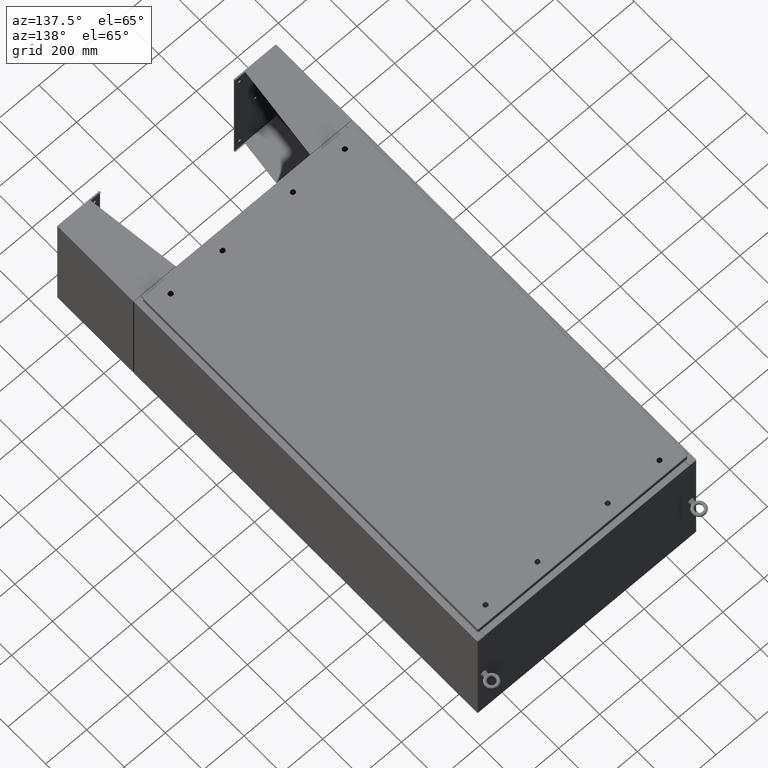
[diagram: clean part render]
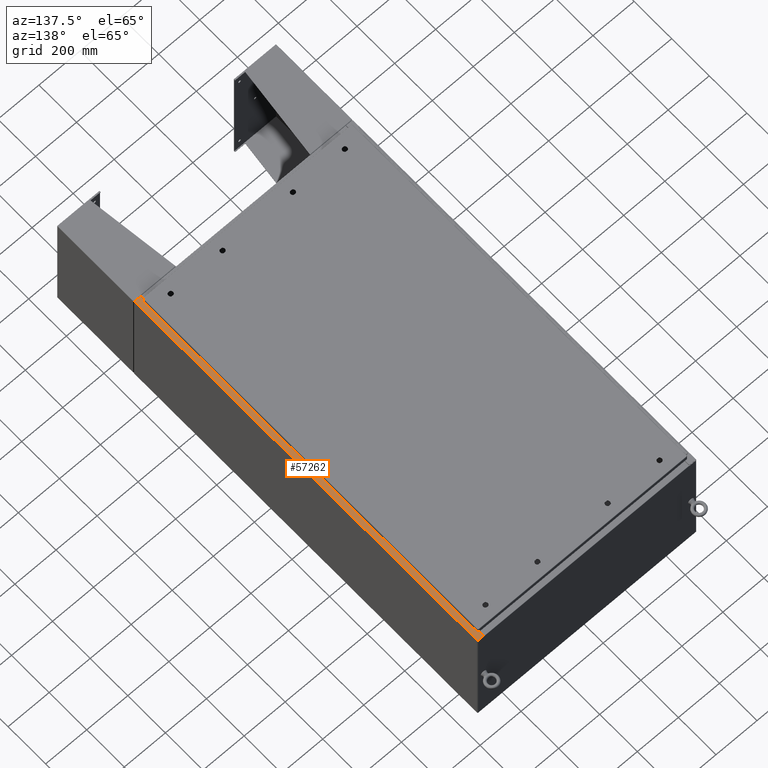
[diagram: same view with one face highlighted and labeled with its STEP entity id]
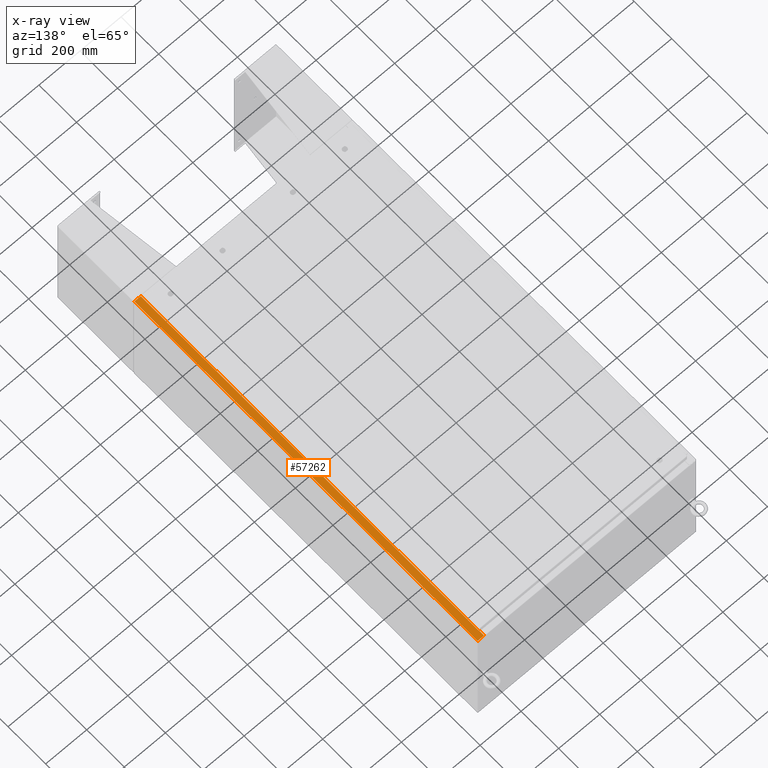
[diagram: x-ray of the same camera — body ghosted, the highlighted face saturated]
A machine part, auxiliary view. The second image highlights one B-rep face of the part: STEP entity #57262.
The next image is the same camera in x-ray: the body ghosted, the highlighted face saturated — about 0% of this face is hidden behind the body in this view.
In plain terms, the highlighted planar face has unit normal (-0, 0, -1).
Its self-contained STEP definition (entity closure, byte-faithful):
#150 = EDGE_CURVE ( 'NONE', #5914, #60733, #559, .T. ) ;
#522 = AXIS2_PLACEMENT_3D ( 'NONE', #43633, #54594, #21768 ) ;
#559 = LINE ( 'NONE', #45982, #13400 ) ;
#932 = LINE ( 'NONE', #20432, #2662 ) ;
#1023 = CARTESIAN_POINT ( 'NONE',  ( 19.69970000000008900, 34.63109999999999600, 23.92530000000000700 ) ) ;
#1180 = LINE ( 'NONE', #5076, #30156 ) ;
#1305 = DIRECTION ( 'NONE',  ( 7.132762385546384700E-015, 0.0000000000000000000, 1.000000000000000000 ) ) ;
#2247 = DIRECTION ( 'NONE',  ( 1.000000000000000000, 0.0000000000000000000, 0.0000000000000000000 ) ) ;
#2271 = CARTESIAN_POINT ( 'NONE',  ( 20.91230000000009100, -35.92530000000000000, 23.92530000000000000 ) ) ;
#2662 = VECTOR ( 'NONE', #18149, 39.37007874015748100 ) ;
#3291 = ORIENTED_EDGE ( 'NONE', *, *, #26801, .T. ) ;
#5076 = CARTESIAN_POINT ( 'NONE',  ( 19.71270000000009400, -34.59375000000000000, 23.92530000000000700 ) ) ;
#5407 = VECTOR ( 'NONE', #28249, 39.37007874015748100 ) ;
#5709 = AXIS2_PLACEMENT_3D ( 'NONE', #68032, #34975, #2247 ) ;
#5914 = VERTEX_POINT ( 'NONE', #59753 ) ;
#6105 = ORIENTED_EDGE ( 'NONE', *, *, #26680, .F. ) ;
#6414 = DIRECTION ( 'NONE',  ( 0.0000000000000000000, -1.000000000000000000, 0.0000000000000000000 ) ) ;
#8413 = EDGE_CURVE ( 'NONE', #5914, #56462, #11319, .T. ) ;
#10299 = DIRECTION ( 'NONE',  ( -0.0000000000000000000, 1.000000000000000000, -0.0000000000000000000 ) ) ;
#11319 = LINE ( 'NONE', #51379, #38724 ) ;
#11837 = CARTESIAN_POINT ( 'NONE',  ( 19.75005000000009000, -34.59374999999999300, 23.92530000000000700 ) ) ;
#13400 = VECTOR ( 'NONE', #19442, 39.37007874015748100 ) ;
#13770 = VECTOR ( 'NONE', #36533, 39.37007874015748100 ) ;
#15082 = VECTOR ( 'NONE', #6414, 39.37007874015748100 ) ;
#15656 = CARTESIAN_POINT ( 'NONE',  ( 19.69970000000008900, 0.0000000000000000000, 23.92530000000000700 ) ) ;
#15696 = CARTESIAN_POINT ( 'NONE',  ( 19.75005000000009000, -34.61242499999999500, 23.92530000000000700 ) ) ;
#16193 = ORIENTED_EDGE ( 'NONE', *, *, #150, .T. ) ;
#16339 = EDGE_CURVE ( 'NONE', #63890, #38116, #47968, .T. ) ;
#16355 = PLANE ( 'NONE',  #522 ) ;
#16514 = FACE_OUTER_BOUND ( 'NONE', #31203, .T. ) ;
#17850 = ORIENTED_EDGE ( 'NONE', *, *, #33090, .F. ) ;
#18149 = DIRECTION ( 'NONE',  ( 1.000000000000000000, 0.0000000000000000000, -7.132762385546384700E-015 ) ) ;
#19146 = EDGE_CURVE ( 'NONE', #60733, #50638, #45872, .T. ) ;
#19442 = DIRECTION ( 'NONE',  ( -1.000000000000000000, 0.0000000000000000000, 7.132762385546384700E-015 ) ) ;
#19930 = EDGE_CURVE ( 'NONE', #40458, #43928, #57785, .T. ) ;
#20272 = ORIENTED_EDGE ( 'NONE', *, *, #34377, .F. ) ;
#20432 = CARTESIAN_POINT ( 'NONE',  ( 1.709142935589255800E-013, -35.92530000000000000, 23.92530000000014900 ) ) ;
#20995 = CARTESIAN_POINT ( 'NONE',  ( 19.75005000000009000, -34.59374999999999300, 23.92530000000000700 ) ) ;
#21751 = VERTEX_POINT ( 'NONE', #36809 ) ;
#21768 = DIRECTION ( 'NONE',  ( -1.000000000000000000, 0.0000000000000000000, 7.132762385546384700E-015 ) ) ;
#22444 = EDGE_CURVE ( 'NONE', #58154, #21751, #57592, .T. ) ;
#23555 = ORIENTED_EDGE ( 'NONE', *, *, #32764, .F. ) ;
#25614 = VERTEX_POINT ( 'NONE', #57796 ) ;
#26094 = CARTESIAN_POINT ( 'NONE',  ( 19.75005000000009000, 34.63109999999999600, 23.92530000000000700 ) ) ;
#26680 = EDGE_CURVE ( 'NONE', #25614, #40458, #64405, .T. ) ;
#26801 = EDGE_CURVE ( 'NONE', #38116, #56462, #932, .T. ) ;
#28249 = DIRECTION ( 'NONE',  ( 0.0000000000000000000, -1.000000000000000000, 0.0000000000000000000 ) ) ;
#28443 = VECTOR ( 'NONE', #34682, 39.37007874015748100 ) ;
#28637 = VECTOR ( 'NONE', #54070, 39.37007874015748100 ) ;
#28900 = ORIENTED_EDGE ( 'NONE', *, *, #16339, .T. ) ;
#30156 = VECTOR ( 'NONE', #10299, 39.37007874015748100 ) ;
#30861 = CIRCLE ( 'NONE', #5709, 0.01867499999999949400 ) ;
#31203 = EDGE_LOOP ( 'NONE', ( #17850, #28900, #3291, #70315, #16193, #39508, #20272, #35532, #48019, #23555, #32489, #6105 ) ) ;
#32489 = ORIENTED_EDGE ( 'NONE', *, *, #19930, .F. ) ;
#32589 = AXIS2_PLACEMENT_3D ( 'NONE', #15696, #1305, #46766 ) ;
#32764 = EDGE_CURVE ( 'NONE', #43928, #58154, #1180, .T. ) ;
#33090 = EDGE_CURVE ( 'NONE', #63890, #25614, #53270, .T. ) ;
#34377 = EDGE_CURVE ( 'NONE', #52993, #50638, #57395, .T. ) ;
#34682 = DIRECTION ( 'NONE',  ( 1.000000000000000000, 0.0000000000000000000, 0.0000000000000000000 ) ) ;
#34975 = DIRECTION ( 'NONE',  ( 7.132762385546384700E-015, 0.0000000000000000000, 1.000000000000000000 ) ) ;
#35331 = CARTESIAN_POINT ( 'NONE',  ( 19.71270000000009400, -34.59374999999999300, 23.92530000000000700 ) ) ;
#35532 = ORIENTED_EDGE ( 'NONE', *, *, #61674, .F. ) ;
#35739 = CARTESIAN_POINT ( 'NONE',  ( 19.69970000000008900, -34.63109999999999600, 23.92530000000000700 ) ) ;
#36533 = DIRECTION ( 'NONE',  ( -1.000000000000000000, 0.0000000000000000000, 0.0000000000000000000 ) ) ;
#36809 = CARTESIAN_POINT ( 'NONE',  ( 19.75005000000009000, 34.59375000000000000, 23.92530000000000700 ) ) ;
#38116 = VERTEX_POINT ( 'NONE', #55271 ) ;
#38724 = VECTOR ( 'NONE', #48093, 39.37007874015748100 ) ;
#39508 = ORIENTED_EDGE ( 'NONE', *, *, #19146, .T. ) ;
#40458 = VERTEX_POINT ( 'NONE', #11837 ) ;
#42062 = CARTESIAN_POINT ( 'NONE',  ( 19.75005000000009000, 34.63109999999999600, 23.92530000000000700 ) ) ;
#43633 = CARTESIAN_POINT ( 'NONE',  ( 1.709142935589255800E-013, 0.0000000000000000000, 23.92530000000014900 ) ) ;
#43928 = VERTEX_POINT ( 'NONE', #35331 ) ;
#45094 = CARTESIAN_POINT ( 'NONE',  ( 19.69970000000008900, 35.92530000000000000, 23.92530000000000700 ) ) ;
#45872 = LINE ( 'NONE', #62353, #15082 ) ;
#45982 = CARTESIAN_POINT ( 'NONE',  ( 1.709142935589255800E-013, 35.92530000000000000, 23.92530000000014900 ) ) ;
#46766 = DIRECTION ( 'NONE',  ( 1.000000000000000000, 0.0000000000000000000, 0.0000000000000000000 ) ) ;
#47968 = LINE ( 'NONE', #15656, #5407 ) ;
#48019 = ORIENTED_EDGE ( 'NONE', *, *, #22444, .F. ) ;
#48093 = DIRECTION ( 'NONE',  ( -0.0000000000000000000, -1.000000000000000000, -0.0000000000000000000 ) ) ;
#50638 = VERTEX_POINT ( 'NONE', #1023 ) ;
#51379 = CARTESIAN_POINT ( 'NONE',  ( 20.91230000000009100, -35.92530000000000000, 23.92530000000000000 ) ) ;
#52993 = VERTEX_POINT ( 'NONE', #26094 ) ;
#53270 = LINE ( 'NONE', #57077, #68137 ) ;
#54070 = DIRECTION ( 'NONE',  ( -1.000000000000000000, 0.0000000000000000000, 0.0000000000000000000 ) ) ;
#54594 = DIRECTION ( 'NONE',  ( -7.132762385546384700E-015, 0.0000000000000000000, -1.000000000000000000 ) ) ;
#55271 = CARTESIAN_POINT ( 'NONE',  ( 19.69970000000008900, -35.92530000000000000, 23.92530000000000700 ) ) ;
#56462 = VERTEX_POINT ( 'NONE', #2271 ) ;
#57077 = CARTESIAN_POINT ( 'NONE',  ( 19.69970000000008900, -34.63109999999999600, 23.92530000000000700 ) ) ;
#57262 = ADVANCED_FACE ( 'NONE', ( #16514 ), #16355, .F. ) ;
#57395 = LINE ( 'NONE', #42062, #13770 ) ;
#57592 = LINE ( 'NONE', #70235, #28443 ) ;
#57785 = LINE ( 'NONE', #20995, #28637 ) ;
#57796 = CARTESIAN_POINT ( 'NONE',  ( 19.75005000000009000, -34.63109999999999600, 23.92530000000000700 ) ) ;
#58154 = VERTEX_POINT ( 'NONE', #63221 ) ;
#59753 = CARTESIAN_POINT ( 'NONE',  ( 20.91230000000009100, 35.92530000000000000, 23.92530000000000000 ) ) ;
#60733 = VERTEX_POINT ( 'NONE', #45094 ) ;
#61674 = EDGE_CURVE ( 'NONE', #21751, #52993, #30861, .T. ) ;
#62353 = CARTESIAN_POINT ( 'NONE',  ( 19.69970000000008900, 0.0000000000000000000, 23.92530000000000700 ) ) ;
#62487 = DIRECTION ( 'NONE',  ( 1.000000000000000000, 0.0000000000000000000, 0.0000000000000000000 ) ) ;
#63221 = CARTESIAN_POINT ( 'NONE',  ( 19.71270000000009400, 34.59375000000000000, 23.92530000000000700 ) ) ;
#63890 = VERTEX_POINT ( 'NONE', #35739 ) ;
#64405 = CIRCLE ( 'NONE', #32589, 0.01867499999999949400 ) ;
#68032 = CARTESIAN_POINT ( 'NONE',  ( 19.75005000000009000, 34.61242500000000200, 23.92530000000000700 ) ) ;
#68137 = VECTOR ( 'NONE', #62487, 39.37007874015748100 ) ;
#70235 = CARTESIAN_POINT ( 'NONE',  ( 19.71270000000009400, 34.59375000000000000, 23.92530000000000700 ) ) ;
#70315 = ORIENTED_EDGE ( 'NONE', *, *, #8413, .F. ) ;